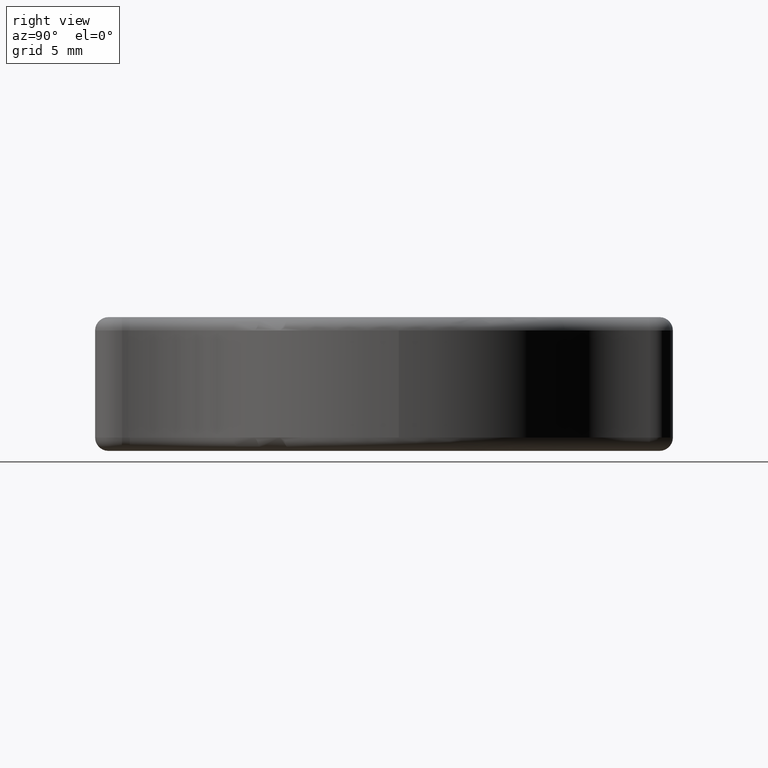
[diagram: clean part render]
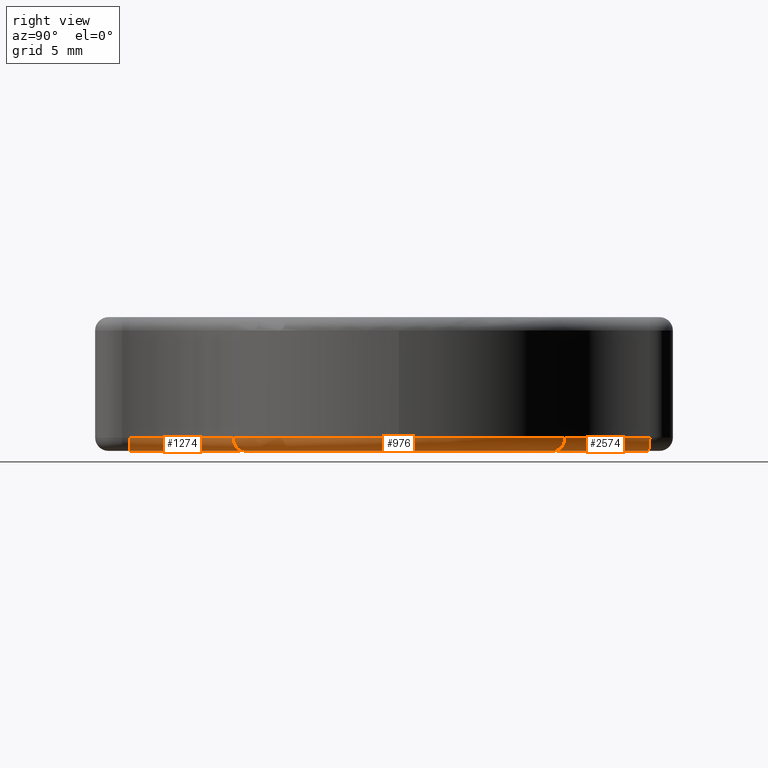
[diagram: same view with one multi-face feature highlighted, each face labeled with its STEP entity id]
A machine part, right view. The highlighted faces form ONE feature: a constant-radius fillet chain: 3 tangent blend faces with common blend radius 1 mm. The faces share edges in the B-rep.
Their STEP definitions:
[1] entity #2574 (Torus):
#15 = DIRECTION ( 'NONE',  ( -1.000000000000000000, 0.0000000000000000000, 0.0000000000000000000 ) ) ;
#50 = ORIENTED_EDGE ( 'NONE', *, *, #2076, .T. ) ;
#154 = DIRECTION ( 'NONE',  ( 0.6308575025356698600, 0.7758987121360991800, 0.0000000000000000000 ) ) ;
#193 = CARTESIAN_POINT ( 'NONE',  ( 9.462862538035047100, 11.63848068204148900, -8.999999999999982200 ) ) ;
#232 = CARTESIAN_POINT ( 'NONE',  ( 16.40229506592741900, 20.17336651553858600, -8.999999999999982200 ) ) ;
#237 = EDGE_CURVE ( 'NONE', #408, #825, #1503, .T. ) ;
#330 = CIRCLE ( 'NONE', #1454, 10.00000000000000200 ) ;
#358 = AXIS2_PLACEMENT_3D ( 'NONE', #2100, #2329, #2337 ) ;
#408 = VERTEX_POINT ( 'NONE', #452 ) ;
#431 = CARTESIAN_POINT ( 'NONE',  ( 9.462862538035045300, 11.63848068204148900, -9.999999999999980500 ) ) ;
#444 = DIRECTION ( 'NONE',  ( -1.000000000000000000, -1.379931019319816200E-047, 2.419439951480636200E-017 ) ) ;
#452 = CARTESIAN_POINT ( 'NONE',  ( 5.509770493407256900, 18.63944720962821200, -9.999999999999980500 ) ) ;
#533 = AXIS2_PLACEMENT_3D ( 'NONE', #193, #2449, #154 ) ;
#558 = EDGE_LOOP ( 'NONE', ( #50, #2587, #641, #1547 ) ) ;
#641 = ORIENTED_EDGE ( 'NONE', *, *, #237, .T. ) ;
#655 = CARTESIAN_POINT ( 'NONE',  ( 16.40229506592741900, 20.17336651553858600, -8.999999999999982200 ) ) ;
#825 = VERTEX_POINT ( 'NONE', #908 ) ;
#856 = DIRECTION ( 'NONE',  ( -2.419439951480636200E-017, 5.703514230536423600E-031, -1.000000000000000000 ) ) ;
#908 = CARTESIAN_POINT ( 'NONE',  ( 6.500000000000000000, 18.77889441925642400, -8.999999999999982200 ) ) ;
#1053 = VERTEX_POINT ( 'NONE', #1408 ) ;
#1097 = AXIS2_PLACEMENT_3D ( 'NONE', #1207, #1424, #2636 ) ;
#1207 = CARTESIAN_POINT ( 'NONE',  ( 5.509770493407256900, 18.63944720962821200, -8.999999999999982200 ) ) ;
#1235 = TOROIDAL_SURFACE ( 'NONE', #1750, 11.00000000000000400, 1.000000000000000000 ) ;
#1261 = DIRECTION ( 'NONE',  ( -2.419439951480636200E-017, 5.703514230536423600E-031, -1.000000000000000000 ) ) ;
#1354 = VERTEX_POINT ( 'NONE', #431 ) ;
#1408 = CARTESIAN_POINT ( 'NONE',  ( 10.09372004057071900, 12.41437939417759200, -8.999999999999982200 ) ) ;
#1424 = DIRECTION ( 'NONE',  ( 0.1394472096282150500, -0.9902295065927417800, -3.373841500969462200E-018 ) ) ;
#1430 = EDGE_CURVE ( 'NONE', #408, #1354, #2387, .T. ) ;
#1451 = FACE_OUTER_BOUND ( 'NONE', #558, .T. ) ;
#1454 = AXIS2_PLACEMENT_3D ( 'NONE', #232, #856, #15 ) ;
#1503 = CIRCLE ( 'NONE', #1097, 1.000000000000000400 ) ;
#1547 = ORIENTED_EDGE ( 'NONE', *, *, #2560, .F. ) ;
#1750 = AXIS2_PLACEMENT_3D ( 'NONE', #655, #1261, #444 ) ;
#2076 = EDGE_CURVE ( 'NONE', #1053, #1354, #2305, .T. ) ;
#2100 = CARTESIAN_POINT ( 'NONE',  ( 16.40229506592741900, 20.17336651553858600, -9.999999999999980500 ) ) ;
#2305 = CIRCLE ( 'NONE', #533, 0.9999999999999996700 ) ;
#2329 = DIRECTION ( 'NONE',  ( 2.419439951480636200E-017, -5.703514230536423600E-031, 1.000000000000000000 ) ) ;
#2337 = DIRECTION ( 'NONE',  ( -1.000000000000000000, 0.0000000000000000000, 0.0000000000000000000 ) ) ;
#2387 = CIRCLE ( 'NONE', #358, 11.00000000000000400 ) ;
#2449 = DIRECTION ( 'NONE',  ( -0.7758987121360991800, 0.6308575025356699700, 1.364742114347105600E-015 ) ) ;
#2560 = EDGE_CURVE ( 'NONE', #1053, #825, #330, .T. ) ;
#2574 = ADVANCED_FACE ( 'NONE', ( #1451 ), #1235, .T. ) ;
#2587 = ORIENTED_EDGE ( 'NONE', *, *, #1430, .F. ) ;
#2636 = DIRECTION ( 'NONE',  ( -0.9902295065927417800, -0.1394472096282149100, 0.0000000000000000000 ) ) ;
[2] entity #976 (Torus):
#99 = DIRECTION ( 'NONE',  ( -1.000000000000000000, 5.301314942585116200E-015, 0.0000000000000000000 ) ) ;
#154 = DIRECTION ( 'NONE',  ( 0.6308575025356698600, 0.7758987121360991800, 0.0000000000000000000 ) ) ;
#193 = CARTESIAN_POINT ( 'NONE',  ( 9.462862538035047100, 11.63848068204148900, -8.999999999999982200 ) ) ;
#207 = VERTEX_POINT ( 'NONE', #385 ) ;
#243 = FACE_OUTER_BOUND ( 'NONE', #1722, .T. ) ;
#261 = VERTEX_POINT ( 'NONE', #625 ) ;
#289 = EDGE_CURVE ( 'NONE', #207, #1053, #1411, .T. ) ;
#315 = DIRECTION ( 'NONE',  ( -1.000000000000000000, -2.775557561562889500E-017, 2.419439951480636200E-017 ) ) ;
#324 = AXIS2_PLACEMENT_3D ( 'NONE', #935, #1762, #99 ) ;
#342 = EDGE_CURVE ( 'NONE', #1354, #987, #1471, .T. ) ;
#385 = CARTESIAN_POINT ( 'NONE',  ( 16.00000000000000000, 4.440892098500650800E-016, -8.999999999999982200 ) ) ;
#406 = ORIENTED_EDGE ( 'NONE', *, *, #342, .F. ) ;
#431 = CARTESIAN_POINT ( 'NONE',  ( 9.462862538035045300, 11.63848068204148900, -9.999999999999980500 ) ) ;
#533 = AXIS2_PLACEMENT_3D ( 'NONE', #193, #2449, #154 ) ;
#542 = CARTESIAN_POINT ( 'NONE',  ( -2.177495956332569000E-016, 5.133162807482772200E-030, -8.999999999999982200 ) ) ;
#546 = AXIS2_PLACEMENT_3D ( 'NONE', #1415, #814, #1621 ) ;
#576 = DIRECTION ( 'NONE',  ( 0.6341401860518995900, -0.7732180962924124500, 0.0000000000000000000 ) ) ;
#596 = EDGE_CURVE ( 'NONE', #261, #207, #1500, .T. ) ;
#625 = CARTESIAN_POINT ( 'NONE',  ( 10.14624297683040400, -12.37148954067859000, -8.999999999999982200 ) ) ;
#768 = AXIS2_PLACEMENT_3D ( 'NONE', #1965, #986, #576 ) ;
#814 = DIRECTION ( 'NONE',  ( 2.419439951480636200E-017, -5.703514230536423600E-031, 1.000000000000000000 ) ) ;
#862 = CARTESIAN_POINT ( 'NONE',  ( -2.419439951480632400E-016, 5.703514230536414000E-030, -9.999999999999980500 ) ) ;
#935 = CARTESIAN_POINT ( 'NONE',  ( -2.177495956332569000E-016, 5.133162807482772200E-030, -8.999999999999982200 ) ) ;
#938 = CIRCLE ( 'NONE', #768, 1.000000000000000000 ) ;
#976 = ADVANCED_FACE ( 'NONE', ( #243 ), #2359, .T. ) ;
#986 = DIRECTION ( 'NONE',  ( 0.7732180962924122300, 0.6341401860518995900, -1.870754753377690500E-017 ) ) ;
#987 = VERTEX_POINT ( 'NONE', #2572 ) ;
#1053 = VERTEX_POINT ( 'NONE', #1408 ) ;
#1321 = ORIENTED_EDGE ( 'NONE', *, *, #289, .F. ) ;
#1354 = VERTEX_POINT ( 'NONE', #431 ) ;
#1408 = CARTESIAN_POINT ( 'NONE',  ( 10.09372004057071900, 12.41437939417759200, -8.999999999999982200 ) ) ;
#1411 = CIRCLE ( 'NONE', #546, 16.00000000000000000 ) ;
#1415 = CARTESIAN_POINT ( 'NONE',  ( -2.177495956332569000E-016, 5.133162807482772200E-030, -8.999999999999982200 ) ) ;
#1471 = CIRCLE ( 'NONE', #1780, 15.00000000000000000 ) ;
#1500 = CIRCLE ( 'NONE', #324, 16.00000000000000000 ) ;
#1537 = DIRECTION ( 'NONE',  ( -2.419439951480636200E-017, 5.703514230536423600E-031, -1.000000000000000000 ) ) ;
#1570 = ORIENTED_EDGE ( 'NONE', *, *, #596, .F. ) ;
#1621 = DIRECTION ( 'NONE',  ( -1.000000000000000000, 7.077671781985363500E-015, 0.0000000000000000000 ) ) ;
#1704 = ORIENTED_EDGE ( 'NONE', *, *, #1999, .T. ) ;
#1722 = EDGE_LOOP ( 'NONE', ( #1704, #406, #1947, #1321, #1570 ) ) ;
#1762 = DIRECTION ( 'NONE',  ( 2.419439951480636200E-017, -5.703514230536423600E-031, 1.000000000000000000 ) ) ;
#1780 = AXIS2_PLACEMENT_3D ( 'NONE', #862, #2289, #2473 ) ;
#1947 = ORIENTED_EDGE ( 'NONE', *, *, #2076, .F. ) ;
#1963 = AXIS2_PLACEMENT_3D ( 'NONE', #542, #1537, #315 ) ;
#1965 = CARTESIAN_POINT ( 'NONE',  ( 9.512102790778506300, -11.59827144438618000, -8.999999999999982200 ) ) ;
#1999 = EDGE_CURVE ( 'NONE', #261, #987, #938, .T. ) ;
#2076 = EDGE_CURVE ( 'NONE', #1053, #1354, #2305, .T. ) ;
#2289 = DIRECTION ( 'NONE',  ( -2.419439951480636200E-017, 5.703514230536423600E-031, -1.000000000000000000 ) ) ;
#2305 = CIRCLE ( 'NONE', #533, 0.9999999999999996700 ) ;
#2359 = TOROIDAL_SURFACE ( 'NONE', #1963, 15.00000000000000000, 1.000000000000000000 ) ;
#2449 = DIRECTION ( 'NONE',  ( -0.7758987121360991800, 0.6308575025356699700, 1.364742114347105600E-015 ) ) ;
#2473 = DIRECTION ( 'NONE',  ( -1.000000000000000000, -2.775557561562889500E-017, 0.0000000000000000000 ) ) ;
#2572 = CARTESIAN_POINT ( 'NONE',  ( 9.512102790778504500, -11.59827144438617600, -9.999999999999980500 ) ) ;
[3] entity #1274 (Torus):
#223 = DIRECTION ( 'NONE',  ( -2.419439951480636200E-017, 5.703514230536423600E-031, -1.000000000000000000 ) ) ;
#261 = VERTEX_POINT ( 'NONE', #625 ) ;
#347 = DIRECTION ( 'NONE',  ( 1.000000000000000000, 0.0000000000000000000, 0.0000000000000000000 ) ) ;
#382 = EDGE_CURVE ( 'NONE', #1545, #261, #2631, .T. ) ;
#576 = DIRECTION ( 'NONE',  ( 0.6341401860518995900, -0.7732180962924124500, 0.0000000000000000000 ) ) ;
#625 = CARTESIAN_POINT ( 'NONE',  ( 10.14624297683040400, -12.37148954067859000, -8.999999999999982200 ) ) ;
#660 = DIRECTION ( 'NONE',  ( -1.000000000000000000, 0.0000000000000000000, 0.0000000000000000000 ) ) ;
#705 = CARTESIAN_POINT ( 'NONE',  ( 16.48764483734941100, -20.10367050360270700, -9.999999999999980500 ) ) ;
#747 = CARTESIAN_POINT ( 'NONE',  ( 5.487644837349408000, -20.10367050360270700, -9.999999999999980500 ) ) ;
#768 = AXIS2_PLACEMENT_3D ( 'NONE', #1965, #986, #576 ) ;
#850 = CIRCLE ( 'NONE', #2242, 1.000000000000000000 ) ;
#869 = DIRECTION ( 'NONE',  ( -1.000000000000000000, -1.379931019319816200E-047, 2.419439951480636200E-017 ) ) ;
#905 = TOROIDAL_SURFACE ( 'NONE', #1172, 11.00000000000000400, 1.000000000000000000 ) ;
#938 = CIRCLE ( 'NONE', #768, 1.000000000000000000 ) ;
#986 = DIRECTION ( 'NONE',  ( 0.7732180962924122300, 0.6341401860518995900, -1.870754753377690500E-017 ) ) ;
#987 = VERTEX_POINT ( 'NONE', #2572 ) ;
#1118 = DIRECTION ( 'NONE',  ( 2.419439951480636200E-017, -5.703514230536423600E-031, 1.000000000000000000 ) ) ;
#1170 = CARTESIAN_POINT ( 'NONE',  ( 6.487644837349408900, -20.10367050360270700, -8.999999999999982200 ) ) ;
#1172 = AXIS2_PLACEMENT_3D ( 'NONE', #1258, #1673, #869 ) ;
#1177 = CIRCLE ( 'NONE', #1582, 11.00000000000000400 ) ;
#1258 = CARTESIAN_POINT ( 'NONE',  ( 16.48764483734941100, -20.10367050360270700, -8.999999999999982200 ) ) ;
#1274 = ADVANCED_FACE ( 'NONE', ( #2267 ), #905, .T. ) ;
#1455 = CARTESIAN_POINT ( 'NONE',  ( 16.48764483734941100, -20.10367050360270700, -8.999999999999982200 ) ) ;
#1545 = VERTEX_POINT ( 'NONE', #1170 ) ;
#1564 = DIRECTION ( 'NONE',  ( 2.775557561562889800E-017, -1.000000000000000000, -5.710229525388502600E-031 ) ) ;
#1582 = AXIS2_PLACEMENT_3D ( 'NONE', #705, #1118, #2102 ) ;
#1609 = ORIENTED_EDGE ( 'NONE', *, *, #2247, .F. ) ;
#1673 = DIRECTION ( 'NONE',  ( -2.419439951480636200E-017, 5.703514230536423600E-031, -1.000000000000000000 ) ) ;
#1768 = ORIENTED_EDGE ( 'NONE', *, *, #382, .F. ) ;
#1914 = AXIS2_PLACEMENT_3D ( 'NONE', #1455, #223, #660 ) ;
#1965 = CARTESIAN_POINT ( 'NONE',  ( 9.512102790778506300, -11.59827144438618000, -8.999999999999982200 ) ) ;
#1995 = VERTEX_POINT ( 'NONE', #747 ) ;
#1999 = EDGE_CURVE ( 'NONE', #261, #987, #938, .T. ) ;
#2102 = DIRECTION ( 'NONE',  ( -1.000000000000000000, 1.419319207617387200E-014, 0.0000000000000000000 ) ) ;
#2242 = AXIS2_PLACEMENT_3D ( 'NONE', #2602, #1564, #347 ) ;
#2247 = EDGE_CURVE ( 'NONE', #1995, #1545, #850, .T. ) ;
#2248 = EDGE_LOOP ( 'NONE', ( #1609, #2441, #2368, #1768 ) ) ;
#2267 = FACE_OUTER_BOUND ( 'NONE', #2248, .T. ) ;
#2368 = ORIENTED_EDGE ( 'NONE', *, *, #1999, .F. ) ;
#2441 = ORIENTED_EDGE ( 'NONE', *, *, #2586, .F. ) ;
#2572 = CARTESIAN_POINT ( 'NONE',  ( 9.512102790778504500, -11.59827144438617600, -9.999999999999980500 ) ) ;
#2586 = EDGE_CURVE ( 'NONE', #987, #1995, #1177, .T. ) ;
#2602 = CARTESIAN_POINT ( 'NONE',  ( 5.487644837349408000, -20.10367050360270700, -8.999999999999982200 ) ) ;
#2631 = CIRCLE ( 'NONE', #1914, 10.00000000000000200 ) ;